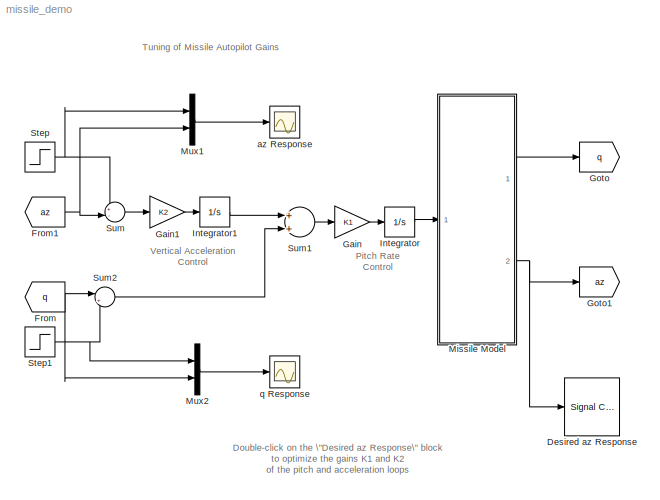
MODEL missile_demo
KIND model
CONFIG PreLoadFcn = load missile_demo
BLOCK [Reference] Desired az Response  REF=srolib/Signal Constraint  (lib defined in mdl_d992e5ea460a)
  DialogPosition = [0.031875 0.176666666666667 0.45 0.31]
  LogID = SRO_DataLog_1
  Ports = [1]
  SaveAs = missile_optim
  SaveIn = workspace
  ShowPortLabels = on
  SourceBlock = srolib/Signal Constraint
  SourceType = Signal Constraint
BLOCK [From] From
  CloseFcn = tagdialog Close
  DialogController = Simulink.DDGSource
  GotoTag = q
BLOCK [From] From1
  CloseFcn = tagdialog Close
  DialogController = Simulink.DDGSource
  GotoTag = az
BLOCK [Gain] Gain
  Gain = K1
  OutDataTypeMode = Inherit via internal rule
  ParameterDataTypeMode = Inherit via internal rule
  SaturateOnIntegerOverflow = off
BLOCK [Gain] Gain1
  Gain = K2
  OutDataTypeMode = Inherit via internal rule
  ParameterDataTypeMode = Inherit via internal rule
  SaturateOnIntegerOverflow = off
BLOCK [Goto] Goto
  DialogController = Simulink.DDGSource
  GotoTag = q
  TagVisibility = local
BLOCK [Goto] Goto1
  DialogController = Simulink.DDGSource
  GotoTag = az
  TagVisibility = local
BLOCK [Integrator] Integrator
  Ports = [1, 1]
BLOCK [Integrator] Integrator1
  Ports = [1, 1]
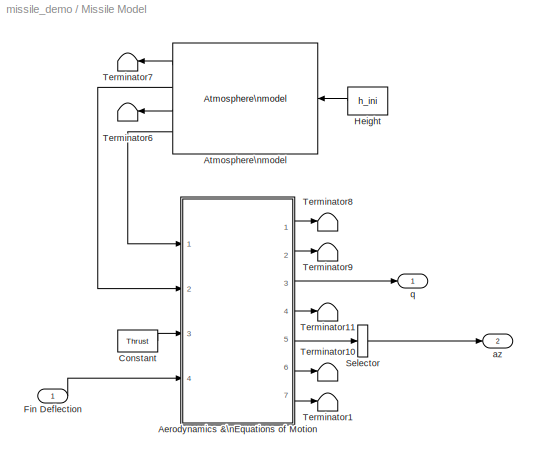
BLOCK [SubSystem] Missile Model
  MinAlgLoopOccurrences = off
  Ports = [1, 2]
  PropExecContextAcrossSSBoundary = on
  RTWSystemCode = Auto
  TreatAsAtomicUnit = off
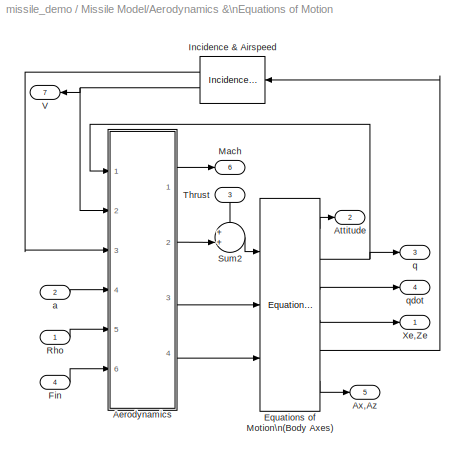
BLOCK [SubSystem] Missile Model/Aerodynamics &\nEquations of Motion
  MinAlgLoopOccurrences = off
  Ports = [4, 7]
  PropExecContextAcrossSSBoundary = on
  RTWSystemCode = Auto
  TreatAsAtomicUnit = off
BLOCK [Reference] Missile Model/Aerodynamics &\nEquations of Motion/ Equations of Motion\n(Body Axes)  REF=aerospace/3DoF\nEquations\nof\nMotion / Equations of Motion\n(Body Axes)  (lib defined in mdl_cf564d925549, slx_1354fe9238a2, +3 more)
  Iyy = Iyy
  Ports = [3, 6]
  ShowPortLabels = on
  SourceBlock = aerospace/3DoF\nEquations\nof\nMotion / Equations of Motion\n(Body Axes)
  SourceType = 3 DOF equations of motion
  alpha_ini = alpha_ini
  g = g
  mass = mass
  pos_ini = [x_ini -h_ini]
  q_ini = q_ini
  theta_ini = theta_ini
  v_ini = v_ini
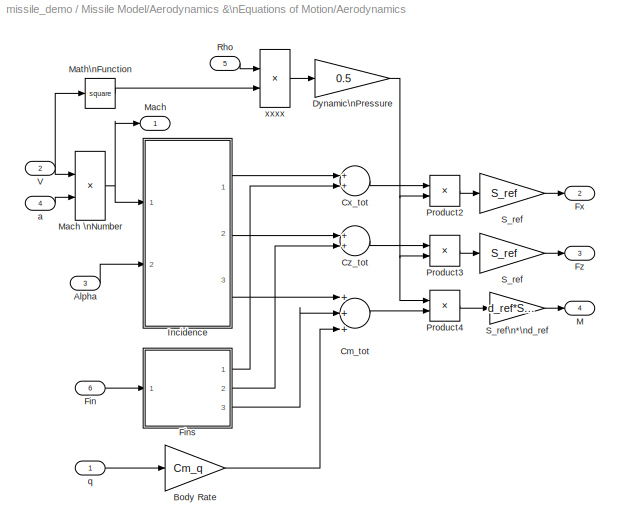
BLOCK [SubSystem] Missile Model/Aerodynamics &\nEquations of Motion/Aerodynamics
  MinAlgLoopOccurrences = off
  Ports = [6, 4]
  PropExecContextAcrossSSBoundary = on
  RTWSystemCode = Auto
  TreatAsAtomicUnit = off
BLOCK [Outport] Missile Model/Aerodynamics &\nEquations of Motion/Aerodynamics/ M
  BusOutputAsStruct = off
  IconDisplay = Port number
  InitialOutput = 0
  Port = 4
BLOCK [Outport] Missile Model/Aerodynamics &\nEquations of Motion/Aerodynamics/ Mach
  BusOutputAsStruct = off
  IconDisplay = Port number
  InitialOutput = 0
BLOCK [Inport] Missile Model/Aerodynamics &\nEquations of Motion/Aerodynamics/Alpha
  IconDisplay = Port number
  LatchInput = off
  Port = 3
BLOCK [Gain] Missile Model/Aerodynamics &\nEquations of Motion/Aerodynamics/Body Rate
  Gain = Cm_q
BLOCK [Sum] Missile Model/Aerodynamics &\nEquations of Motion/Aerodynamics/Cm_tot
  Inputs = +++
  Ports = [3, 1]
BLOCK [Sum] Missile Model/Aerodynamics &\nEquations of Motion/Aerodynamics/Cx_tot
  Ports = [2, 1]
BLOCK [Sum] Missile Model/Aerodynamics &\nEquations of Motion/Aerodynamics/Cz_tot
  Ports = [2, 1]
BLOCK [Gain] Missile Model/Aerodynamics &\nEquations of Motion/Aerodynamics/Dynamic\nPressure
  Gain = 0.5
BLOCK [Inport] Missile Model/Aerodynamics &\nEquations of Motion/Aerodynamics/Fin
  IconDisplay = Port number
  LatchInput = off
  Port = 6
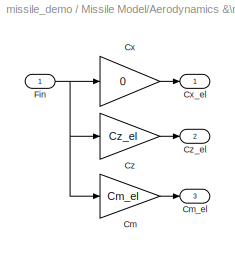
BLOCK [SubSystem] Missile Model/Aerodynamics &\nEquations of Motion/Aerodynamics/Fins
  MinAlgLoopOccurrences = off
  Ports = [1, 3]
  PropExecContextAcrossSSBoundary = on
  RTWSystemCode = Auto
  TreatAsAtomicUnit = off
BLOCK [Gain] Missile Model/Aerodynamics &\nEquations of Motion/Aerodynamics/Fins/Cm
  Gain = Cm_el
BLOCK [Outport] Missile Model/Aerodynamics &\nEquations of Motion/Aerodynamics/Fins/Cm_el
  BusOutputAsStruct = off
  IconDisplay = Port number
  InitialOutput = 0
  Port = 3
BLOCK [Gain] Missile Model/Aerodynamics &\nEquations of Motion/Aerodynamics/Fins/Cx
  Gain = 0
BLOCK [Outport] Missile Model/Aerodynamics &\nEquations of Motion/Aerodynamics/Fins/Cx_el
  BusOutputAsStruct = off
  IconDisplay = Port number
  InitialOutput = 0
BLOCK [Gain] Missile Model/Aerodynamics &\nEquations of Motion/Aerodynamics/Fins/Cz
  Gain = Cz_el
BLOCK [Outport] Missile Model/Aerodynamics &\nEquations of Motion/Aerodynamics/Fins/Cz_el
  BusOutputAsStruct = off
  IconDisplay = Port number
  InitialOutput = 0
  Port = 2
BLOCK [Inport] Missile Model/Aerodynamics &\nEquations of Motion/Aerodynamics/Fins/Fin
  IconDisplay = Port number
  LatchInput = off
BLOCK [Outport] Missile Model/Aerodynamics &\nEquations of Motion/Aerodynamics/Fx
  BusOutputAsStruct = off
  IconDisplay = Port number
  InitialOutput = [0]
  Port = 2
BLOCK [Outport] Missile Model/Aerodynamics &\nEquations of Motion/Aerodynamics/Fz
  BusOutputAsStruct = off
  IconDisplay = Port number
  InitialOutput = 0
  Port = 3
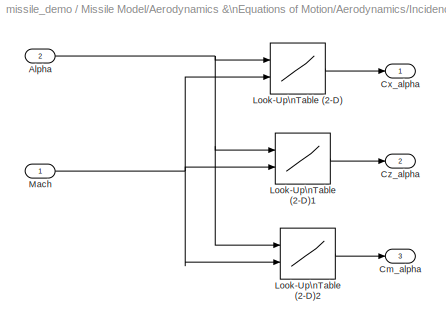
BLOCK [SubSystem] Missile Model/Aerodynamics &\nEquations of Motion/Aerodynamics/Incidence
  MinAlgLoopOccurrences = off
  Ports = [2, 3]
  PropExecContextAcrossSSBoundary = on
  RTWSystemCode = Auto
  TreatAsAtomicUnit = off
BLOCK [Inport] Missile Model/Aerodynamics &\nEquations of Motion/Aerodynamics/Incidence/Alpha
  IconDisplay = Port number
  LatchInput = off
  Port = 2
BLOCK [Outport] Missile Model/Aerodynamics &\nEquations of Motion/Aerodynamics/Incidence/Cm_alpha
  BusOutputAsStruct = off
  IconDisplay = Port number
  InitialOutput = 0
  Port = 3
BLOCK [Outport] Missile Model/Aerodynamics &\nEquations of Motion/Aerodynamics/Incidence/Cx_alpha
  BusOutputAsStruct = off
  IconDisplay = Port number
  InitialOutput = 0
BLOCK [Outport] Missile Model/Aerodynamics &\nEquations of Motion/Aerodynamics/Incidence/Cz_alpha
  BusOutputAsStruct = off
  IconDisplay = Port number
  InitialOutput = 0
  Port = 2
BLOCK [Lookup2D] Missile Model/Aerodynamics &\nEquations of Motion/Aerodynamics/Incidence/Look-Up\nTable (2-D)
  ColumnIndex = Mach_vec
  DialogController = Simulink.DDGSource
  InputSameDT = off
  OutputValues = Cx_alpha
  RowIndex = alpha_vec
BLOCK [Lookup2D] Missile Model/Aerodynamics &\nEquations of Motion/Aerodynamics/Incidence/Look-Up\nTable (2-D)1
  ColumnIndex = Mach_vec
  DialogController = Simulink.DDGSource
  InputSameDT = off
  OutputValues = Cz_alpha
  RowIndex = alpha_vec
BLOCK [Lookup2D] Missile Model/Aerodynamics &\nEquations of Motion/Aerodynamics/Incidence/Look-Up\nTable (2-D)2
  ColumnIndex = Mach_vec
  DialogController = Simulink.DDGSource
  InputSameDT = off
  OutputValues = Cm_alpha
  RowIndex = alpha_vec
BLOCK [Inport] Missile Model/Aerodynamics &\nEquations of Motion/Aerodynamics/Incidence/Mach
  IconDisplay = Port number
  LatchInput = off
BLOCK [Product] Missile Model/Aerodynamics &\nEquations of Motion/Aerodynamics/Mach \nNumber
  Inputs = */
  Ports = [2, 1]
  RndMeth = Floor
BLOCK [Math] Missile Model/Aerodynamics &\nEquations of Motion/Aerodynamics/Math\nFunction
  Operator = square
  Ports = [1, 1]
BLOCK [Product] Missile Model/Aerodynamics &\nEquations of Motion/Aerodynamics/Product2
  Ports = [2, 1]
  RndMeth = Floor
BLOCK [Product] Missile Model/Aerodynamics &\nEquations of Motion/Aerodynamics/Product3
  Ports = [2, 1]
  RndMeth = Floor
BLOCK [Product] Missile Model/Aerodynamics &\nEquations of Motion/Aerodynamics/Product4
  Ports = [2, 1]
  RndMeth = Floor
BLOCK [Inport] Missile Model/Aerodynamics &\nEquations of Motion/Aerodynamics/Rho
  IconDisplay = Port number
  LatchInput = off
  Port = 5
BLOCK [Gain] Missile Model/Aerodynamics &\nEquations of Motion/Aerodynamics/S_ref
  Gain = S_ref
BLOCK [Gain] Missile Model/Aerodynamics &\nEquations of Motion/Aerodynamics/S_ref 
  Gain = S_ref
BLOCK [Gain] Missile Model/Aerodynamics &\nEquations of Motion/Aerodynamics/S_ref\n*\nd_ref
  Gain = d_ref*S_ref
BLOCK [Inport] Missile Model/Aerodynamics &\nEquations of Motion/Aerodynamics/V
  IconDisplay = Port number
  LatchInput = off
  Port = 2
BLOCK [Inport] Missile Model/Aerodynamics &\nEquations of Motion/Aerodynamics/a
  IconDisplay = Port number
  LatchInput = off
  Port = 4
BLOCK [Inport] Missile Model/Aerodynamics &\nEquations of Motion/Aerodynamics/q
  IconDisplay = Port number
  LatchInput = off
BLOCK [Product] Missile Model/Aerodynamics &\nEquations of Motion/Aerodynamics/xxxx
  Ports = [2, 1]
  RndMeth = Floor
BLOCK [Outport] Missile Model/Aerodynamics &\nEquations of Motion/Attitude
  BusOutputAsStruct = off
  IconDisplay = Port number
  InitialOutput = 0
  Port = 2
BLOCK [Outport] Missile Model/Aerodynamics &\nEquations of Motion/Ax,Az
  BusOutputAsStruct = off
  IconDisplay = Port number
  InitialOutput = 0
  Port = 5
BLOCK [Inport] Missile Model/Aerodynamics &\nEquations of Motion/Fin
  IconDisplay = Port number
  LatchInput = off
  Port = 4
BLOCK [Reference] Missile Model/Aerodynamics &\nEquations of Motion/Incidence & Airspeed  REF=aerospace/3DoF\nEquations\nof\nMotion /Incidence \n& Airspeed  (lib defined in mdl_cf564d925549, slx_1354fe9238a2, +3 more)
  Ports = [1, 2]
  ShowPortLabels = on
  SourceBlock = aerospace/3DoF\nEquations\nof\nMotion /Incidence \n& Airspeed
  SourceType = Incidence and Airspeed
BLOCK [Outport] Missile Model/Aerodynamics &\nEquations of Motion/Mach
  BusOutputAsStruct = off
  IconDisplay = Port number
  InitialOutput = 0
  Port = 6
BLOCK [Inport] Missile Model/Aerodynamics &\nEquations of Motion/Rho
  IconDisplay = Port number
  LatchInput = off
BLOCK [Sum] Missile Model/Aerodynamics &\nEquations of Motion/Sum2
  IconShape = round
  Inputs = ++|
  Ports = [2, 1]
BLOCK [Inport] Missile Model/Aerodynamics &\nEquations of Motion/Thrust
  IconDisplay = Port number
  LatchInput = off
  Port = 3
BLOCK [Outport] Missile Model/Aerodynamics &\nEquations of Motion/V
  BusOutputAsStruct = off
  IconDisplay = Port number
  InitialOutput = 0
  Port = 7
BLOCK [Outport] Missile Model/Aerodynamics &\nEquations of Motion/Xe,Ze
  BusOutputAsStruct = off
  IconDisplay = Port number
  InitialOutput = 0
BLOCK [Inport] Missile Model/Aerodynamics &\nEquations of Motion/a
  IconDisplay = Port number
  LatchInput = off
  Port = 2
BLOCK [Outport] Missile Model/Aerodynamics &\nEquations of Motion/q
  BusOutputAsStruct = off
  IconDisplay = Port number
  InitialOutput = 0
  Port = 3
BLOCK [Outport] Missile Model/Aerodynamics &\nEquations of Motion/qdot
  BusOutputAsStruct = off
  IconDisplay = Port number
  InitialOutput = 0
  Port = 4
BLOCK [Reference] Missile Model/Atmosphere\nmodel  REF=aerospace/Atmosphere/Atmosphere\nmodel  (lib defined in mdl_cf564d925549, slx_1354fe9238a2, +3 more)
  Ports = [1, 4]
  ShowPortLabels = on
  SourceBlock = aerospace/Atmosphere/Atmosphere\nmodel
  SourceType = Atmosphere Model
BLOCK [Constant] Missile Model/Constant
  Value = Thrust
BLOCK [Inport] Missile Model/Fin Deflection
  IconDisplay = Port number
  LatchInput = off
BLOCK [Constant] Missile Model/Height
  Value = h_ini
BLOCK [Selector] Missile Model/Selector
  Elements = [2]
  InputPortWidth = 2
  Ports = [1, 1]
BLOCK [Terminator] Missile Model/Terminator1
BLOCK [Terminator] Missile Model/Terminator10
BLOCK [Terminator] Missile Model/Terminator11
BLOCK [Terminator] Missile Model/Terminator6
BLOCK [Terminator] Missile Model/Terminator7
BLOCK [Terminator] Missile Model/Terminator8
BLOCK [Terminator] Missile Model/Terminator9
BLOCK [Outport] Missile Model/az
  BusOutputAsStruct = off
  IconDisplay = Port number
  InitialOutput = 0
  Port = 2
BLOCK [Outport] Missile Model/q
  BusOutputAsStruct = off
  IconDisplay = Port number
  InitialOutput = 0
BLOCK [Mux] Mux1
  DisplayOption = bar
  Inputs = 2
  Ports = [2, 1]
BLOCK [Mux] Mux2
  DisplayOption = bar
  Inputs = 2
  Ports = [2, 1]
BLOCK [Step] Step
  After = 200
  SampleTime = 0
BLOCK [Step] Step1
  After = 0.1*0
  SampleTime = 0
BLOCK [Sum] Sum
  IconShape = round
  InputSameDT = off
  Inputs = +-|
  OutDataTypeMode = Inherit via internal rule
  Ports = [2, 1]
BLOCK [Sum] Sum1
  InputSameDT = off
  OutDataTypeMode = Inherit via internal rule
  Ports = [2, 1]
BLOCK [Sum] Sum2
  IconShape = round
  InputSameDT = off
  Inputs = |++
  OutDataTypeMode = Inherit via internal rule
  Ports = [2, 1]
BLOCK [Scope] az Response
  DataFormat = StructureWithTime
  NumInputPorts = 1
  Ports = [1]
  YMax = 0
  YMin = -0.008
BLOCK [Scope] q Response
  DataFormat = StructureWithTime
  NumInputPorts = 1
  Ports = [1]
  SaveName = ScopeData2
  YMax = 0
  YMin = -0.008
ANNOTATION (root): Double-click on the \"Desired az Response\" block\nto optimize the gains K1 and K2\nof the pitch and acceleration loops
ANNOTATION (root): Pitch Rate \nControl
ANNOTATION (root): Tuning of Missile Autopilot Gains
ANNOTATION (root): Vertical Acceleration\nControl
NET From1:1 -> Mux1:2, Sum:2
NET From:1 -> Mux2:2, Sum2:1
LINE Gain1:1 -> Integrator1:1
LINE Gain:1 -> Integrator:1
LINE Integrator1:1 -> Sum1:1
LINE Integrator:1 -> Missile Model:1
LINE Missile Model/Aerodynamics &\nEquations of Motion/ Equations of Motion\n(Body Axes):1 -> Missile Model/Aerodynamics &\nEquations of Motion/Attitude:1
NET Missile Model/Aerodynamics &\nEquations of Motion/ Equations of Motion\n(Body Axes):2 -> Missile Model/Aerodynamics &\nEquations of Motion/Aerodynamics:1, Missile Model/Aerodynamics &\nEquations of Motion/q:1
LINE Missile Model/Aerodynamics &\nEquations of Motion/ Equations of Motion\n(Body Axes):3 -> Missile Model/Aerodynamics &\nEquations of Motion/qdot:1
LINE Missile Model/Aerodynamics &\nEquations of Motion/ Equations of Motion\n(Body Axes):4 -> Missile Model/Aerodynamics &\nEquations of Motion/Xe,Ze:1
LINE Missile Model/Aerodynamics &\nEquations of Motion/ Equations of Motion\n(Body Axes):5 -> Missile Model/Aerodynamics &\nEquations of Motion/Incidence & Airspeed:1
LINE Missile Model/Aerodynamics &\nEquations of Motion/ Equations of Motion\n(Body Axes):6 -> Missile Model/Aerodynamics &\nEquations of Motion/Ax,Az:1
LINE Missile Model/Aerodynamics &\nEquations of Motion/Aerodynamics/Alpha:1 -> Missile Model/Aerodynamics &\nEquations of Motion/Aerodynamics/Incidence:2
LINE Missile Model/Aerodynamics &\nEquations of Motion/Aerodynamics/Body Rate:1 -> Missile Model/Aerodynamics &\nEquations of Motion/Aerodynamics/Cm_tot:3
LINE Missile Model/Aerodynamics &\nEquations of Motion/Aerodynamics/Cm_tot:1 -> Missile Model/Aerodynamics &\nEquations of Motion/Aerodynamics/Product4:2
LINE Missile Model/Aerodynamics &\nEquations of Motion/Aerodynamics/Cx_tot:1 -> Missile Model/Aerodynamics &\nEquations of Motion/Aerodynamics/Product2:1
LINE Missile Model/Aerodynamics &\nEquations of Motion/Aerodynamics/Cz_tot:1 -> Missile Model/Aerodynamics &\nEquations of Motion/Aerodynamics/Product3:1
NET Missile Model/Aerodynamics &\nEquations of Motion/Aerodynamics/Dynamic\nPressure:1 -> Missile Model/Aerodynamics &\nEquations of Motion/Aerodynamics/Product2:2, Missile Model/Aerodynamics &\nEquations of Motion/Aerodynamics/Product3:2, Missile Model/Aerodynamics &\nEquations of Motion/Aerodynamics/Product4:1
LINE Missile Model/Aerodynamics &\nEquations of Motion/Aerodynamics/Fin:1 -> Missile Model/Aerodynamics &\nEquations of Motion/Aerodynamics/Fins:1
LINE Missile Model/Aerodynamics &\nEquations of Motion/Aerodynamics/Fins/Cm:1 -> Missile Model/Aerodynamics &\nEquations of Motion/Aerodynamics/Fins/Cm_el:1
LINE Missile Model/Aerodynamics &\nEquations of Motion/Aerodynamics/Fins/Cx:1 -> Missile Model/Aerodynamics &\nEquations of Motion/Aerodynamics/Fins/Cx_el:1
LINE Missile Model/Aerodynamics &\nEquations of Motion/Aerodynamics/Fins/Cz:1 -> Missile Model/Aerodynamics &\nEquations of Motion/Aerodynamics/Fins/Cz_el:1
NET Missile Model/Aerodynamics &\nEquations of Motion/Aerodynamics/Fins/Fin:1 -> Missile Model/Aerodynamics &\nEquations of Motion/Aerodynamics/Fins/Cm:1, Missile Model/Aerodynamics &\nEquations of Motion/Aerodynamics/Fins/Cx:1, Missile Model/Aerodynamics &\nEquations of Motion/Aerodynamics/Fins/Cz:1
LINE Missile Model/Aerodynamics &\nEquations of Motion/Aerodynamics/Fins:1 -> Missile Model/Aerodynamics &\nEquations of Motion/Aerodynamics/Cx_tot:2
LINE Missile Model/Aerodynamics &\nEquations of Motion/Aerodynamics/Fins:2 -> Missile Model/Aerodynamics &\nEquations of Motion/Aerodynamics/Cz_tot:2
LINE Missile Model/Aerodynamics &\nEquations of Motion/Aerodynamics/Fins:3 -> Missile Model/Aerodynamics &\nEquations of Motion/Aerodynamics/Cm_tot:2
NET Missile Model/Aerodynamics &\nEquations of Motion/Aerodynamics/Incidence/Alpha:1 -> Missile Model/Aerodynamics &\nEquations of Motion/Aerodynamics/Incidence/Look-Up\nTable (2-D)1:1, Missile Model/Aerodynamics &\nEquations of Motion/Aerodynamics/Incidence/Look-Up\nTable (2-D)2:1, Missile Model/Aerodynamics &\nEquations of Motion/Aerodynamics/Incidence/Look-Up\nTable (2-D):1
LINE Missile Model/Aerodynamics &\nEquations of Motion/Aerodynamics/Incidence/Look-Up\nTable (2-D)1:1 -> Missile Model/Aerodynamics &\nEquations of Motion/Aerodynamics/Incidence/Cz_alpha:1
LINE Missile Model/Aerodynamics &\nEquations of Motion/Aerodynamics/Incidence/Look-Up\nTable (2-D)2:1 -> Missile Model/Aerodynamics &\nEquations of Motion/Aerodynamics/Incidence/Cm_alpha:1
LINE Missile Model/Aerodynamics &\nEquations of Motion/Aerodynamics/Incidence/Look-Up\nTable (2-D):1 -> Missile Model/Aerodynamics &\nEquations of Motion/Aerodynamics/Incidence/Cx_alpha:1
NET Missile Model/Aerodynamics &\nEquations of Motion/Aerodynamics/Incidence/Mach:1 -> Missile Model/Aerodynamics &\nEquations of Motion/Aerodynamics/Incidence/Look-Up\nTable (2-D)1:2, Missile Model/Aerodynamics &\nEquations of Motion/Aerodynamics/Incidence/Look-Up\nTable (2-D)2:2, Missile Model/Aerodynamics &\nEquations of Motion/Aerodynamics/Incidence/Look-Up\nTable (2-D):2
LINE Missile Model/Aerodynamics &\nEquations of Motion/Aerodynamics/Incidence:1 -> Missile Model/Aerodynamics &\nEquations of Motion/Aerodynamics/Cx_tot:1
LINE Missile Model/Aerodynamics &\nEquations of Motion/Aerodynamics/Incidence:2 -> Missile Model/Aerodynamics &\nEquations of Motion/Aerodynamics/Cz_tot:1
LINE Missile Model/Aerodynamics &\nEquations of Motion/Aerodynamics/Incidence:3 -> Missile Model/Aerodynamics &\nEquations of Motion/Aerodynamics/Cm_tot:1
NET Missile Model/Aerodynamics &\nEquations of Motion/Aerodynamics/Mach \nNumber:1 -> Missile Model/Aerodynamics &\nEquations of Motion/Aerodynamics/ Mach:1, Missile Model/Aerodynamics &\nEquations of Motion/Aerodynamics/Incidence:1
LINE Missile Model/Aerodynamics &\nEquations of Motion/Aerodynamics/Math\nFunction:1 -> Missile Model/Aerodynamics &\nEquations of Motion/Aerodynamics/xxxx:2
LINE Missile Model/Aerodynamics &\nEquations of Motion/Aerodynamics/Product2:1 -> Missile Model/Aerodynamics &\nEquations of Motion/Aerodynamics/S_ref:1
LINE Missile Model/Aerodynamics &\nEquations of Motion/Aerodynamics/Product3:1 -> Missile Model/Aerodynamics &\nEquations of Motion/Aerodynamics/S_ref :1
LINE Missile Model/Aerodynamics &\nEquations of Motion/Aerodynamics/Product4:1 -> Missile Model/Aerodynamics &\nEquations of Motion/Aerodynamics/S_ref\n*\nd_ref:1
LINE Missile Model/Aerodynamics &\nEquations of Motion/Aerodynamics/Rho:1 -> Missile Model/Aerodynamics &\nEquations of Motion/Aerodynamics/xxxx:1
LINE Missile Model/Aerodynamics &\nEquations of Motion/Aerodynamics/S_ref :1 -> Missile Model/Aerodynamics &\nEquations of Motion/Aerodynamics/Fz:1
LINE Missile Model/Aerodynamics &\nEquations of Motion/Aerodynamics/S_ref:1 -> Missile Model/Aerodynamics &\nEquations of Motion/Aerodynamics/Fx:1
LINE Missile Model/Aerodynamics &\nEquations of Motion/Aerodynamics/S_ref\n*\nd_ref:1 -> Missile Model/Aerodynamics &\nEquations of Motion/Aerodynamics/ M:1
NET Missile Model/Aerodynamics &\nEquations of Motion/Aerodynamics/V:1 -> Missile Model/Aerodynamics &\nEquations of Motion/Aerodynamics/Mach \nNumber:1, Missile Model/Aerodynamics &\nEquations of Motion/Aerodynamics/Math\nFunction:1
LINE Missile Model/Aerodynamics &\nEquations of Motion/Aerodynamics/a:1 -> Missile Model/Aerodynamics &\nEquations of Motion/Aerodynamics/Mach \nNumber:2
LINE Missile Model/Aerodynamics &\nEquations of Motion/Aerodynamics/q:1 -> Missile Model/Aerodynamics &\nEquations of Motion/Aerodynamics/Body Rate:1
LINE Missile Model/Aerodynamics &\nEquations of Motion/Aerodynamics/xxxx:1 -> Missile Model/Aerodynamics &\nEquations of Motion/Aerodynamics/Dynamic\nPressure:1
LINE Missile Model/Aerodynamics &\nEquations of Motion/Aerodynamics:1 -> Missile Model/Aerodynamics &\nEquations of Motion/Mach:1
LINE Missile Model/Aerodynamics &\nEquations of Motion/Aerodynamics:2 -> Missile Model/Aerodynamics &\nEquations of Motion/Sum2:2
LINE Missile Model/Aerodynamics &\nEquations of Motion/Aerodynamics:3 -> Missile Model/Aerodynamics &\nEquations of Motion/ Equations of Motion\n(Body Axes):2
LINE Missile Model/Aerodynamics &\nEquations of Motion/Aerodynamics:4 -> Missile Model/Aerodynamics &\nEquations of Motion/ Equations of Motion\n(Body Axes):3
LINE Missile Model/Aerodynamics &\nEquations of Motion/Fin:1 -> Missile Model/Aerodynamics &\nEquations of Motion/Aerodynamics:6
LINE Missile Model/Aerodynamics &\nEquations of Motion/Incidence & Airspeed:1 -> Missile Model/Aerodynamics &\nEquations of Motion/Aerodynamics:3
NET Missile Model/Aerodynamics &\nEquations of Motion/Incidence & Airspeed:2 -> Missile Model/Aerodynamics &\nEquations of Motion/Aerodynamics:2, Missile Model/Aerodynamics &\nEquations of Motion/V:1
LINE Missile Model/Aerodynamics &\nEquations of Motion/Rho:1 -> Missile Model/Aerodynamics &\nEquations of Motion/Aerodynamics:5
LINE Missile Model/Aerodynamics &\nEquations of Motion/Sum2:1 -> Missile Model/Aerodynamics &\nEquations of Motion/ Equations of Motion\n(Body Axes):1
LINE Missile Model/Aerodynamics &\nEquations of Motion/Thrust:1 -> Missile Model/Aerodynamics &\nEquations of Motion/Sum2:1
LINE Missile Model/Aerodynamics &\nEquations of Motion/a:1 -> Missile Model/Aerodynamics &\nEquations of Motion/Aerodynamics:4
LINE Missile Model/Aerodynamics &\nEquations of Motion:1 -> Missile Model/Terminator8:1
LINE Missile Model/Aerodynamics &\nEquations of Motion:2 -> Missile Model/Terminator9:1
LINE Missile Model/Aerodynamics &\nEquations of Motion:3 -> Missile Model/q:1
LINE Missile Model/Aerodynamics &\nEquations of Motion:4 -> Missile Model/Terminator11:1
LINE Missile Model/Aerodynamics &\nEquations of Motion:5 -> Missile Model/Selector:1
LINE Missile Model/Aerodynamics &\nEquations of Motion:6 -> Missile Model/Terminator10:1
LINE Missile Model/Aerodynamics &\nEquations of Motion:7 -> Missile Model/Terminator1:1
LINE Missile Model/Atmosphere\nmodel:1 -> Missile Model/Terminator7:1
LINE Missile Model/Atmosphere\nmodel:2 -> Missile Model/Aerodynamics &\nEquations of Motion:2
LINE Missile Model/Atmosphere\nmodel:3 -> Missile Model/Terminator6:1
LINE Missile Model/Atmosphere\nmodel:4 -> Missile Model/Aerodynamics &\nEquations of Motion:1
LINE Missile Model/Constant:1 -> Missile Model/Aerodynamics &\nEquations of Motion:3
LINE Missile Model/Fin Deflection:1 -> Missile Model/Aerodynamics &\nEquations of Motion:4
LINE Missile Model/Height:1 -> Missile Model/Atmosphere\nmodel:1
LINE Missile Model/Selector:1 -> Missile Model/az:1
LINE Missile Model:1 -> Goto:1
NET Missile Model:2 -> Desired az Response:1, Goto1:1
LINE Mux1:1 -> az Response:1
LINE Mux2:1 -> q Response:1
NET Step1:1 -> Mux2:1, Sum2:2
NET Step:1 -> Mux1:1, Sum:1
LINE Sum1:1 -> Gain:1
LINE Sum2:1 -> Sum1:2
LINE Sum:1 -> Gain1:1
note: NET lines group one-source signal fan-out (src -> all destinations, sorted); 1:1 wires keep LINE
